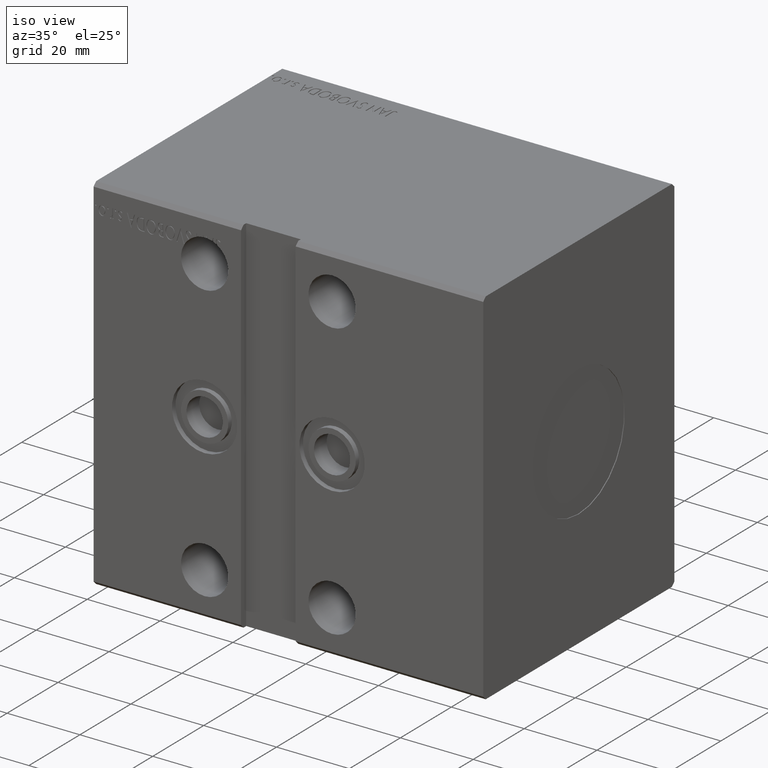
[diagram: clean part render]
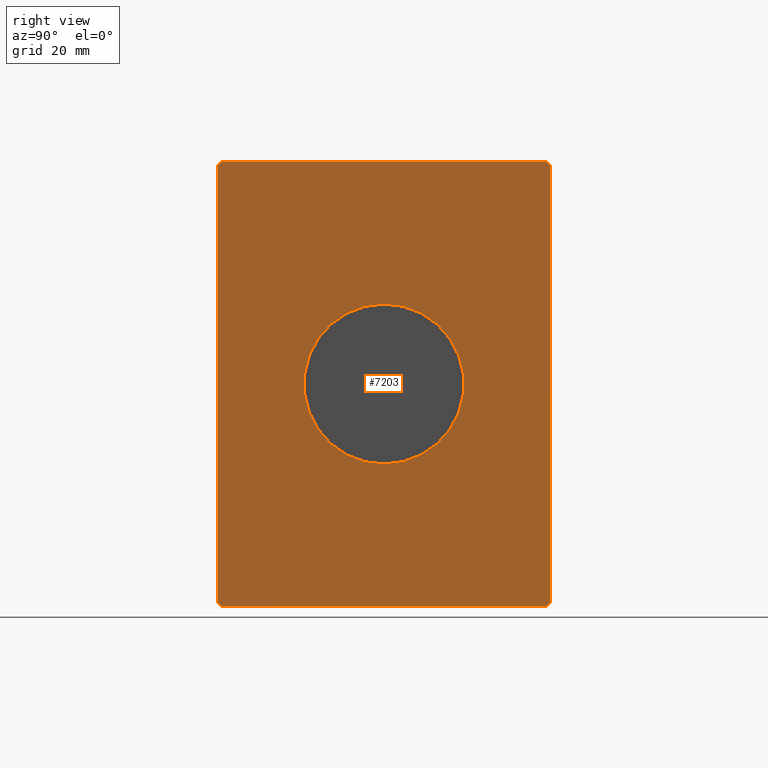
[diagram: tour spotlight — one face highlighted and labeled with its STEP entity id]
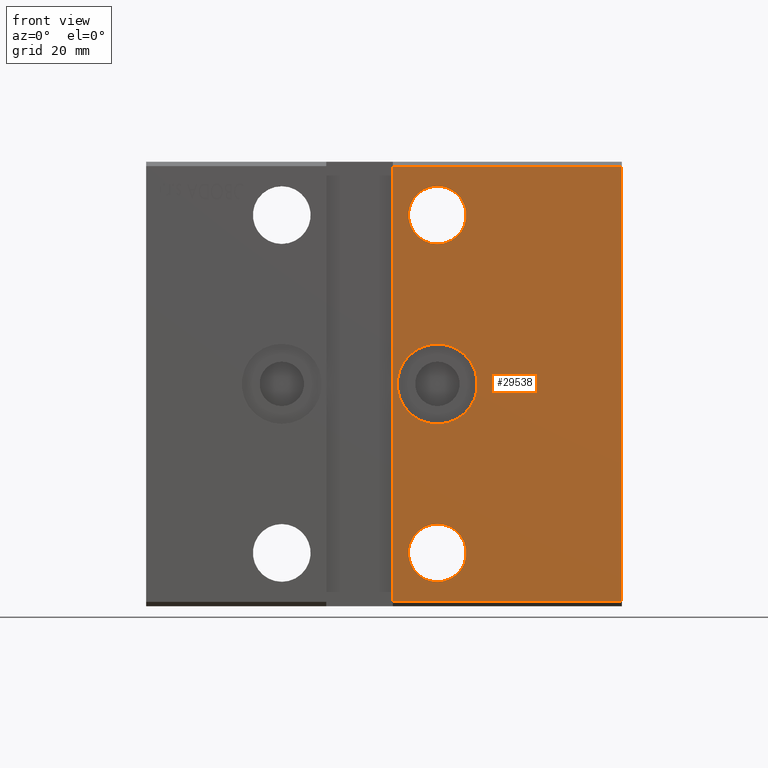
[diagram: tour spotlight — one face highlighted and labeled with its STEP entity id]
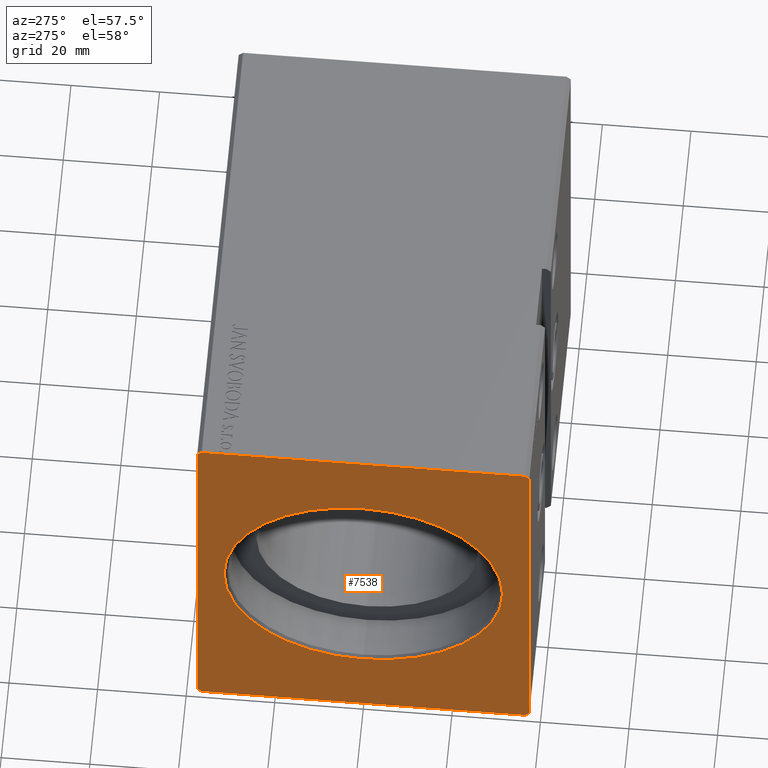
[diagram: tour spotlight — one face highlighted and labeled with its STEP entity id]
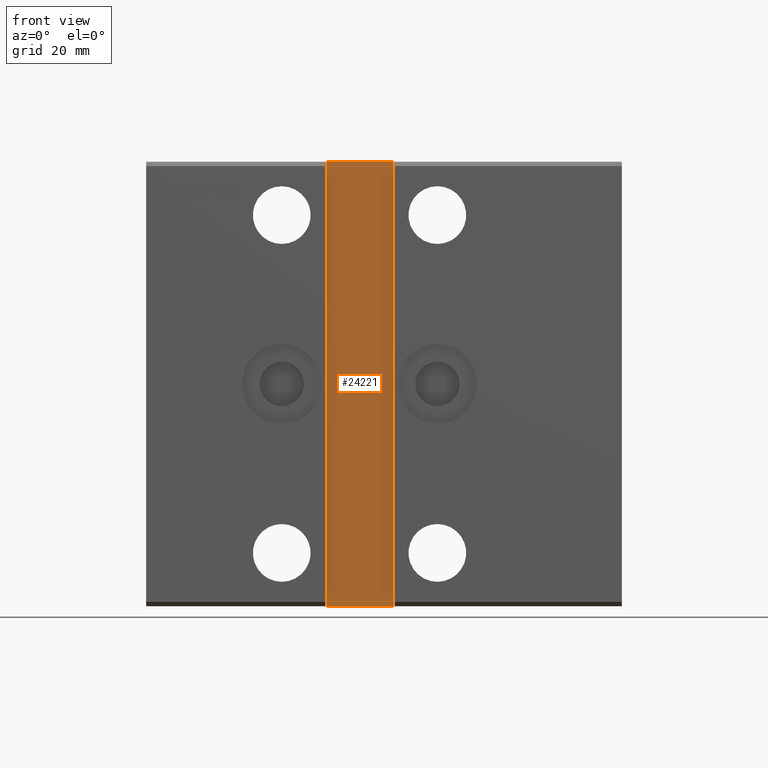
[diagram: tour spotlight — one face highlighted and labeled with its STEP entity id]
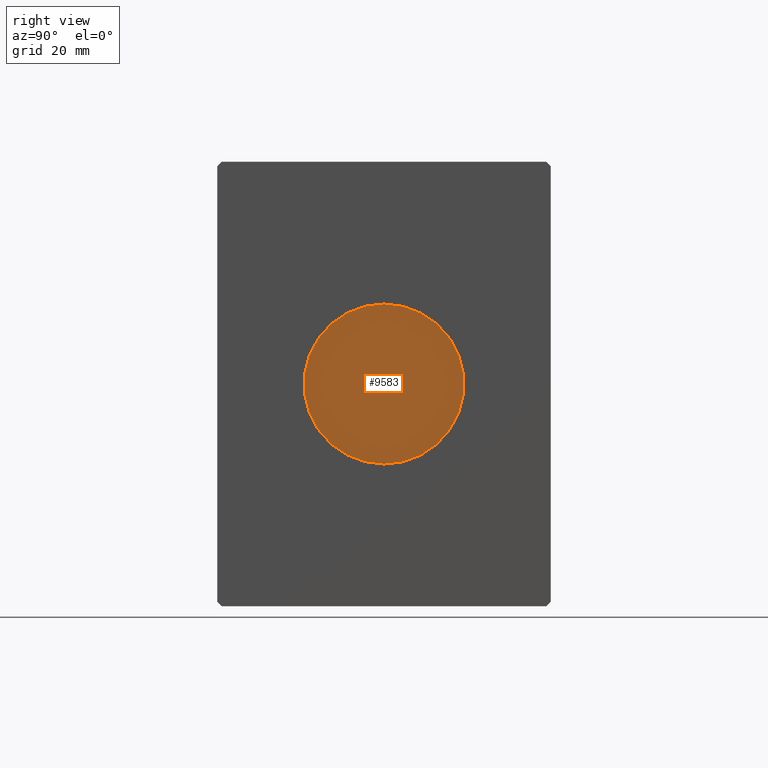
[diagram: tour spotlight — one face highlighted and labeled with its STEP entity id]
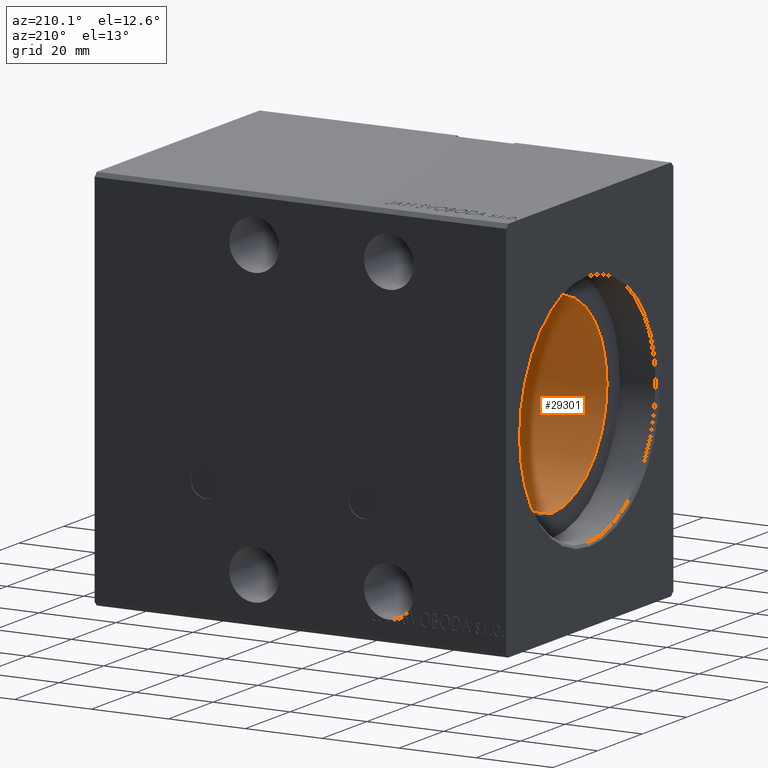
[diagram: tour spotlight — one face highlighted and labeled with its STEP entity id]
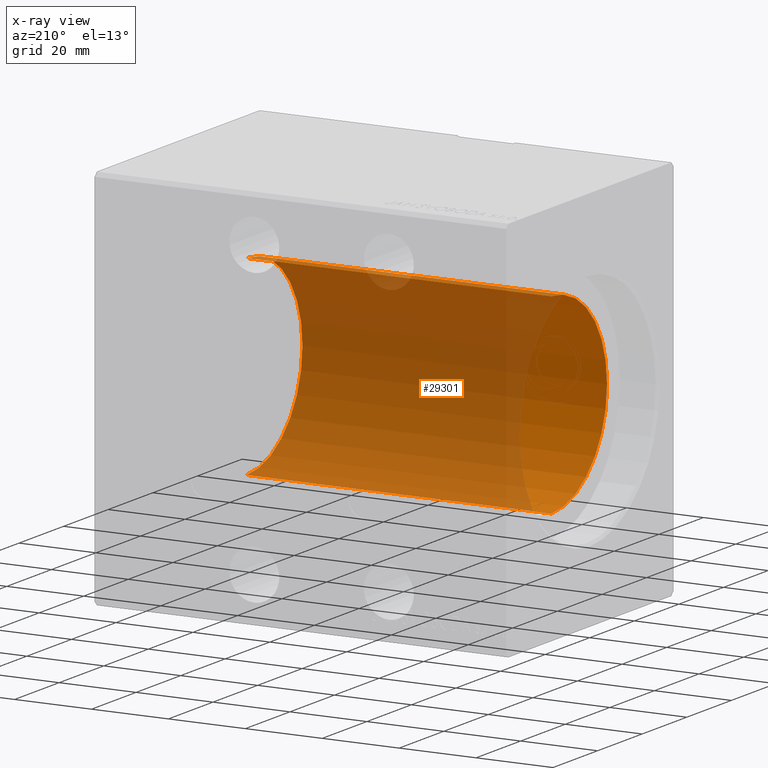
[diagram: x-ray of the same camera — body ghosted, this tour face saturated]
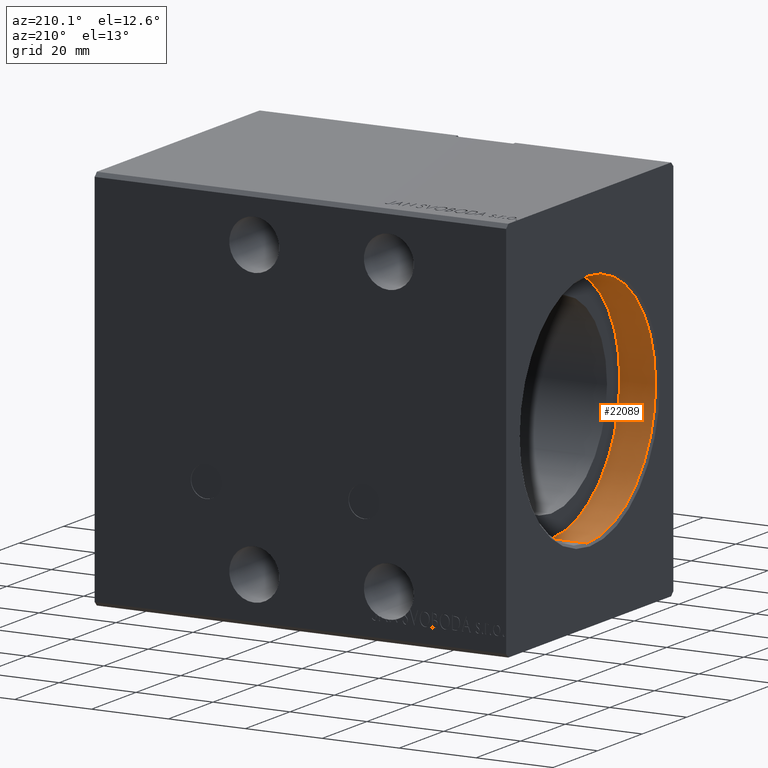
[diagram: tour spotlight — one face highlighted and labeled with its STEP entity id]
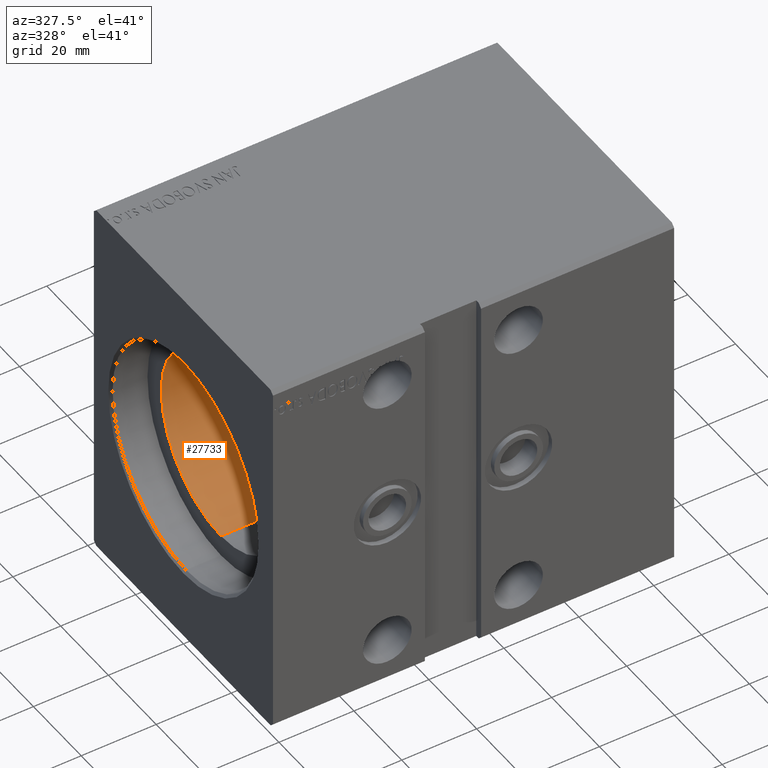
[diagram: tour spotlight — one face highlighted and labeled with its STEP entity id]
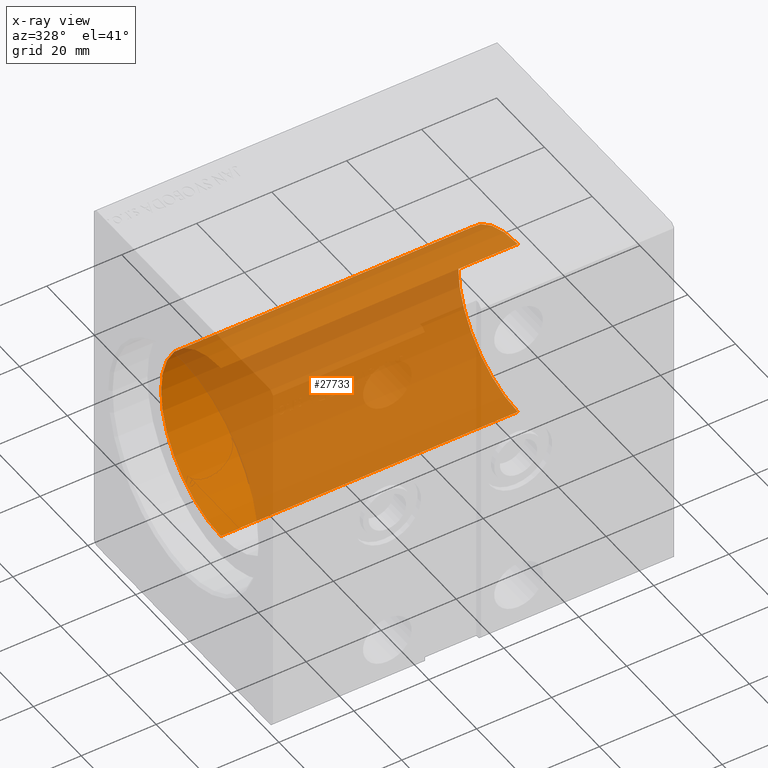
[diagram: x-ray of the same camera — body ghosted, this tour face saturated]
A machine part: a face-by-face anatomy tour. The part has 775 B-rep faces; the first image is the clean iso view, then the 8 largest visible faces are spotlighted one at a time (largest first), each with its STEP entity span.

Face 1 — right view, entity #7203. In plain terms, the highlighted planar face has unit normal (1, 0, 0).
Definition (entity closure, byte-faithful):
#321 = FACE_OUTER_BOUND ( 'NONE', #15539, .T. ) ;
#393 = LINE ( 'NONE', #25522, #36676 ) ;
#2260 = VECTOR ( 'NONE', #34795, 1000.000000000000000 ) ;
#2726 = CARTESIAN_POINT ( 'NONE',  ( 107.0000000000000000, 0.000000000000000000, 0.000000000000000000 ) ) ;
#2978 = CARTESIAN_POINT ( 'NONE',  ( 107.0000000000000000, 0.000000000000000000, 0.000000000000000000 ) ) ;
#3152 = VECTOR ( 'NONE', #36477, 1000.000000000000000 ) ;
#3345 = DIRECTION ( 'NONE',  ( 0.000000000000000000, -1.000000000000000000, -1.901066822988281457E-16 ) ) ;
#3460 = VERTEX_POINT ( 'NONE', #11670 ) ;
#4286 = CARTESIAN_POINT ( 'NONE',  ( 107.0000000000000000, -36.50000000000001421, 49.99999999999998579 ) ) ;
#4799 = ORIENTED_EDGE ( 'NONE', *, *, #36279, .T. ) ;
#4821 = EDGE_CURVE ( 'NONE', #10454, #16277, #28825, .T. ) ;
#6241 = EDGE_CURVE ( 'NONE', #22938, #30348, #25026, .T. ) ;
#6873 = CARTESIAN_POINT ( 'NONE',  ( 107.0000000000000000, -37.50000000000001421, 48.99999999999998579 ) ) ;
#7203 = ADVANCED_FACE ( 'NONE', ( #9390, #321 ), #12487, .T. ) ;
#7842 = ORIENTED_EDGE ( 'NONE', *, *, #37794, .T. ) ;
#8851 = CARTESIAN_POINT ( 'NONE',  ( 107.0000000000000000, 36.50000000000000711, -50.00000000000000000 ) ) ;
#8958 = DIRECTION ( 'NONE',  ( 0.000000000000000000, 0.000000000000000000, -1.000000000000000000 ) ) ;
#9001 = VERTEX_POINT ( 'NONE', #4286 ) ;
#9390 = FACE_BOUND ( 'NONE', #35087, .T. ) ;
#9726 = CARTESIAN_POINT ( 'NONE',  ( 107.0000000000000000, 36.50000000000000711, 50.00000000000000000 ) ) ;
#9789 = DIRECTION ( 'NONE',  ( 1.000000000000000000, 0.000000000000000000, 0.000000000000000000 ) ) ;
#10213 = VERTEX_POINT ( 'NONE', #36321 ) ;
#10454 = VERTEX_POINT ( 'NONE', #20416 ) ;
#10730 = LINE ( 'NONE', #32574, #19832 ) ;
#10986 = CARTESIAN_POINT ( 'NONE',  ( 107.0000000000000000, 37.50000000000000711, 49.00000000000000000 ) ) ;
#11670 = CARTESIAN_POINT ( 'NONE',  ( 107.0000000000000000, 36.50000000000000711, 50.00000000000000000 ) ) ;
#11792 = DIRECTION ( 'NONE',  ( 1.000000000000000000, 0.000000000000000000, 0.000000000000000000 ) ) ;
#12427 = LINE ( 'NONE', #9726, #28367 ) ;
#12487 = PLANE ( 'NONE',  #30516 ) ;
#13347 = DIRECTION ( 'NONE',  ( 0.000000000000000000, -0.7071067811865474617, 0.7071067811865474617 ) ) ;
#14206 = VERTEX_POINT ( 'NONE', #29939 ) ;
#14258 = CIRCLE ( 'NONE', #37290, 18.00000000000000000 ) ;
#15539 = EDGE_LOOP ( 'NONE', ( #31720, #4799, #19813, #33962, #40307, #19763, #7842, #18276 ) ) ;
#15962 = DIRECTION ( 'NONE',  ( 0.000000000000000000, 0.000000000000000000, -1.000000000000000000 ) ) ;
#16277 = VERTEX_POINT ( 'NONE', #8851 ) ;
#16440 = ORIENTED_EDGE ( 'NONE', *, *, #17022, .F. ) ;
#16569 = VECTOR ( 'NONE', #30640, 1000.000000000000114 ) ;
#17022 = EDGE_CURVE ( 'NONE', #18881, #10213, #14258, .T. ) ;
#17849 = LINE ( 'NONE', #40101, #16569 ) ;
#18242 = CIRCLE ( 'NONE', #27452, 18.00000000000000000 ) ;
#18276 = ORIENTED_EDGE ( 'NONE', *, *, #6241, .T. ) ;
#18881 = VERTEX_POINT ( 'NONE', #30221 ) ;
#19763 = ORIENTED_EDGE ( 'NONE', *, *, #4821, .T. ) ;
#19813 = ORIENTED_EDGE ( 'NONE', *, *, #35798, .T. ) ;
#19832 = VECTOR ( 'NONE', #23086, 1000.000000000000114 ) ;
#20362 = EDGE_CURVE ( 'NONE', #30348, #3460, #393, .T. ) ;
#20416 = CARTESIAN_POINT ( 'NONE',  ( 107.0000000000000000, -36.50000000000000711, -50.00000000000000000 ) ) ;
#21041 = VECTOR ( 'NONE', #26403, 1000.000000000000114 ) ;
#21752 = CARTESIAN_POINT ( 'NONE',  ( 107.0000000000000000, 0.000000000000000000, 0.000000000000000000 ) ) ;
#22228 = CARTESIAN_POINT ( 'NONE',  ( 107.0000000000000000, -36.50000000000000711, -50.00000000000000000 ) ) ;
#22298 = CARTESIAN_POINT ( 'NONE',  ( 107.0000000000000000, -37.50000000000001421, -49.00000000000000000 ) ) ;
#22938 = VERTEX_POINT ( 'NONE', #35337 ) ;
#23086 = DIRECTION ( 'NONE',  ( 0.000000000000000000, -0.7071067811865474617, -0.7071067811865474617 ) ) ;
#23315 = CARTESIAN_POINT ( 'NONE',  ( 107.0000000000000000, -37.50000000000001421, 48.99999999999998579 ) ) ;
#25026 = LINE ( 'NONE', #37998, #34417 ) ;
#25522 = CARTESIAN_POINT ( 'NONE',  ( 107.0000000000000000, 37.50000000000000711, 49.00000000000000000 ) ) ;
#25771 = EDGE_CURVE ( 'NONE', #38538, #14206, #29909, .T. ) ;
#26228 = ORIENTED_EDGE ( 'NONE', *, *, #33842, .F. ) ;
#26403 = DIRECTION ( 'NONE',  ( 0.000000000000000000, 0.7071067811865500152, -0.7071067811865451302 ) ) ;
#27452 = AXIS2_PLACEMENT_3D ( 'NONE', #2726, #11792, #36500 ) ;
#27542 = EDGE_CURVE ( 'NONE', #14206, #10454, #38568, .T. ) ;
#28367 = VECTOR ( 'NONE', #3345, 1000.000000000000000 ) ;
#28510 = DIRECTION ( 'NONE',  ( 1.000000000000000000, 0.000000000000000000, 0.000000000000000000 ) ) ;
#28825 = LINE ( 'NONE', #22228, #2260 ) ;
#29909 = LINE ( 'NONE', #23315, #3152 ) ;
#29939 = CARTESIAN_POINT ( 'NONE',  ( 107.0000000000000000, -37.50000000000001421, -49.00000000000000000 ) ) ;
#30221 = CARTESIAN_POINT ( 'NONE',  ( 107.0000000000000000, 2.204364238465235428E-15, 18.00000000000000000 ) ) ;
#30348 = VERTEX_POINT ( 'NONE', #10986 ) ;
#30516 = AXIS2_PLACEMENT_3D ( 'NONE', #21752, #9789, #15962 ) ;
#30640 = DIRECTION ( 'NONE',  ( 0.000000000000000000, 0.7071067811865474617, 0.7071067811865474617 ) ) ;
#31028 = DIRECTION ( 'NONE',  ( 0.000000000000000000, 0.000000000000000000, 1.000000000000000000 ) ) ;
#31720 = ORIENTED_EDGE ( 'NONE', *, *, #20362, .T. ) ;
#32574 = CARTESIAN_POINT ( 'NONE',  ( 107.0000000000000000, -36.50000000000001421, 49.99999999999998579 ) ) ;
#33842 = EDGE_CURVE ( 'NONE', #10213, #18881, #18242, .T. ) ;
#33962 = ORIENTED_EDGE ( 'NONE', *, *, #25771, .T. ) ;
#34417 = VECTOR ( 'NONE', #31028, 1000.000000000000000 ) ;
#34795 = DIRECTION ( 'NONE',  ( 0.000000000000000000, 1.000000000000000000, 0.000000000000000000 ) ) ;
#35087 = EDGE_LOOP ( 'NONE', ( #26228, #16440 ) ) ;
#35337 = CARTESIAN_POINT ( 'NONE',  ( 107.0000000000000000, 37.50000000000000711, -49.00000000000000000 ) ) ;
#35798 = EDGE_CURVE ( 'NONE', #9001, #38538, #10730, .T. ) ;
#36279 = EDGE_CURVE ( 'NONE', #3460, #9001, #12427, .T. ) ;
#36321 = CARTESIAN_POINT ( 'NONE',  ( 107.0000000000000000, 0.000000000000000000, -18.00000000000000000 ) ) ;
#36477 = DIRECTION ( 'NONE',  ( 0.000000000000000000, 0.000000000000000000, -1.000000000000000000 ) ) ;
#36500 = DIRECTION ( 'NONE',  ( 0.000000000000000000, 0.000000000000000000, -1.000000000000000000 ) ) ;
#36676 = VECTOR ( 'NONE', #13347, 1000.000000000000114 ) ;
#37290 = AXIS2_PLACEMENT_3D ( 'NONE', #2978, #28510, #8958 ) ;
#37794 = EDGE_CURVE ( 'NONE', #16277, #22938, #17849, .T. ) ;
#37998 = CARTESIAN_POINT ( 'NONE',  ( 107.0000000000000000, 37.50000000000000711, -49.00000000000000000 ) ) ;
#38538 = VERTEX_POINT ( 'NONE', #6873 ) ;
#38568 = LINE ( 'NONE', #22298, #21041 ) ;
#40101 = CARTESIAN_POINT ( 'NONE',  ( 107.0000000000000000, 36.50000000000000711, -50.00000000000000000 ) ) ;
#40307 = ORIENTED_EDGE ( 'NONE', *, *, #27542, .T. ) ;

Face 2 — front view, entity #29538. In plain terms, the highlighted planar face has unit normal (-0, 1, 0).
Definition (entity closure, byte-faithful):
#869 = DIRECTION ( 'NONE',  ( 0.000000000000000000, 0.000000000000000000, 1.000000000000000000 ) ) ;
#1007 = CARTESIAN_POINT ( 'NONE',  ( 55.50000000000000000, -37.50000000000001421, 48.99999999999998579 ) ) ;
#1075 = CARTESIAN_POINT ( 'NONE',  ( 65.50000000000001421, -37.50000000000001421, -2.652630106891489909E-15 ) ) ;
#1174 = DIRECTION ( 'NONE',  ( -0.000000000000000000, 1.000000000000000000, 0.000000000000000000 ) ) ;
#1286 = LINE ( 'NONE', #32604, #17619 ) ;
#1353 = DIRECTION ( 'NONE',  ( 0.000000000000000000, 0.000000000000000000, 1.000000000000000000 ) ) ;
#2122 = CARTESIAN_POINT ( 'NONE',  ( 65.50000000000001421, -37.50000000000001421, -38.00000000000000000 ) ) ;
#2312 = VERTEX_POINT ( 'NONE', #14788 ) ;
#2573 = CARTESIAN_POINT ( 'NONE',  ( 65.50000000000000000, -37.50000000000001421, 44.50000000000000000 ) ) ;
#2756 = ORIENTED_EDGE ( 'NONE', *, *, #25771, .F. ) ;
#3152 = VECTOR ( 'NONE', #36477, 1000.000000000000000 ) ;
#3622 = AXIS2_PLACEMENT_3D ( 'NONE', #1075, #13631, #869 ) ;
#3949 = EDGE_CURVE ( 'NONE', #7397, #6792, #27903, .T. ) ;
#4290 = EDGE_CURVE ( 'NONE', #30307, #14933, #18678, .T. ) ;
#4792 = ORIENTED_EDGE ( 'NONE', *, *, #4290, .T. ) ;
#4962 = DIRECTION ( 'NONE',  ( -1.000000000000000000, -0.000000000000000000, -0.000000000000000000 ) ) ;
#5501 = EDGE_CURVE ( 'NONE', #38538, #21083, #33196, .T. ) ;
#6183 = AXIS2_PLACEMENT_3D ( 'NONE', #2122, #8301, #14882 ) ;
#6792 = VERTEX_POINT ( 'NONE', #32350 ) ;
#6873 = CARTESIAN_POINT ( 'NONE',  ( 107.0000000000000000, -37.50000000000001421, 48.99999999999998579 ) ) ;
#7148 = FACE_BOUND ( 'NONE', #26274, .T. ) ;
#7397 = VERTEX_POINT ( 'NONE', #2573 ) ;
#7941 = DIRECTION ( 'NONE',  ( 0.000000000000000000, -1.000000000000000000, -0.000000000000000000 ) ) ;
#7970 = CARTESIAN_POINT ( 'NONE',  ( 65.50000000000001421, -37.50000000000001421, -44.50000000000000000 ) ) ;
#8093 = EDGE_CURVE ( 'NONE', #14933, #30307, #19318, .T. ) ;
#8301 = DIRECTION ( 'NONE',  ( -0.000000000000000000, 1.000000000000000000, 0.000000000000000000 ) ) ;
#10715 = EDGE_LOOP ( 'NONE', ( #40248, #18491 ) ) ;
#11032 = CARTESIAN_POINT ( 'NONE',  ( 65.50000000000000000, -37.50000000000001421, 38.00000000000000000 ) ) ;
#11201 = EDGE_CURVE ( 'NONE', #2312, #22477, #31909, .T. ) ;
#11810 = DIRECTION ( 'NONE',  ( -1.000000000000000000, -0.000000000000000000, -0.000000000000000000 ) ) ;
#11999 = DIRECTION ( 'NONE',  ( 0.000000000000000000, -1.000000000000000000, -0.000000000000000000 ) ) ;
#12061 = EDGE_CURVE ( 'NONE', #14206, #38285, #27468, .T. ) ;
#12119 = AXIS2_PLACEMENT_3D ( 'NONE', #38459, #1174, #26299 ) ;
#12298 = DIRECTION ( 'NONE',  ( -0.000000000000000000, 1.000000000000000000, 0.000000000000000000 ) ) ;
#13583 = CIRCLE ( 'NONE', #37937, 8.999999999999996447 ) ;
#13631 = DIRECTION ( 'NONE',  ( -0.000000000000000000, 1.000000000000000000, 5.507058653894625853E-17 ) ) ;
#14045 = DIRECTION ( 'NONE',  ( -2.081668171172169006E-16, -0.000000000000000000, 1.000000000000000000 ) ) ;
#14206 = VERTEX_POINT ( 'NONE', #29939 ) ;
#14680 = CARTESIAN_POINT ( 'NONE',  ( 107.0000000000000000, -37.50000000000001421, -49.00000000000000000 ) ) ;
#14788 = CARTESIAN_POINT ( 'NONE',  ( 65.50000000000001421, -37.50000000000001421, -9.000000000000000000 ) ) ;
#14882 = DIRECTION ( 'NONE',  ( 0.000000000000000000, 0.000000000000000000, 1.000000000000000000 ) ) ;
#14933 = VERTEX_POINT ( 'NONE', #40053 ) ;
#15325 = EDGE_LOOP ( 'NONE', ( #26637, #37861, #27715, #2756 ) ) ;
#16186 = ORIENTED_EDGE ( 'NONE', *, *, #3949, .F. ) ;
#16327 = CARTESIAN_POINT ( 'NONE',  ( 55.50000000000002132, -37.50000000000001421, -48.99999999999997158 ) ) ;
#16930 = EDGE_CURVE ( 'NONE', #22477, #2312, #13583, .T. ) ;
#17619 = VECTOR ( 'NONE', #14045, 1000.000000000000000 ) ;
#18491 = ORIENTED_EDGE ( 'NONE', *, *, #16930, .T. ) ;
#18678 = CIRCLE ( 'NONE', #6183, 6.499999999999999112 ) ;
#19213 = EDGE_CURVE ( 'NONE', #38285, #21083, #1286, .T. ) ;
#19258 = VECTOR ( 'NONE', #4962, 1000.000000000000000 ) ;
#19318 = CIRCLE ( 'NONE', #27897, 6.499999999999999112 ) ;
#19710 = FACE_OUTER_BOUND ( 'NONE', #15325, .T. ) ;
#19806 = CIRCLE ( 'NONE', #36249, 6.499999999999999112 ) ;
#20495 = DIRECTION ( 'NONE',  ( 0.000000000000000000, 0.000000000000000000, 1.000000000000000000 ) ) ;
#21083 = VERTEX_POINT ( 'NONE', #1007 ) ;
#22477 = VERTEX_POINT ( 'NONE', #37316 ) ;
#22774 = DIRECTION ( 'NONE',  ( -0.000000000000000000, 1.000000000000000000, 5.507058653894625853E-17 ) ) ;
#22800 = FACE_BOUND ( 'NONE', #10715, .T. ) ;
#23315 = CARTESIAN_POINT ( 'NONE',  ( 107.0000000000000000, -37.50000000000001421, 48.99999999999998579 ) ) ;
#25771 = EDGE_CURVE ( 'NONE', #38538, #14206, #29909, .T. ) ;
#26274 = EDGE_LOOP ( 'NONE', ( #4792, #27708 ) ) ;
#26299 = DIRECTION ( 'NONE',  ( 0.000000000000000000, -0.000000000000000000, 1.000000000000000000 ) ) ;
#26637 = ORIENTED_EDGE ( 'NONE', *, *, #5501, .T. ) ;
#27468 = LINE ( 'NONE', #14680, #35848 ) ;
#27708 = ORIENTED_EDGE ( 'NONE', *, *, #8093, .T. ) ;
#27715 = ORIENTED_EDGE ( 'NONE', *, *, #12061, .F. ) ;
#27819 = EDGE_LOOP ( 'NONE', ( #37125, #16186 ) ) ;
#27861 = CARTESIAN_POINT ( 'NONE',  ( 65.50000000000000000, -37.50000000000001421, 38.00000000000000000 ) ) ;
#27897 = AXIS2_PLACEMENT_3D ( 'NONE', #34731, #12298, #40722 ) ;
#27903 = CIRCLE ( 'NONE', #33167, 6.499999999999999112 ) ;
#28584 = PLANE ( 'NONE',  #12119 ) ;
#29538 = ADVANCED_FACE ( 'NONE', ( #22800, #7148, #19710, #32287 ), #28584, .F. ) ;
#29909 = LINE ( 'NONE', #23315, #3152 ) ;
#29939 = CARTESIAN_POINT ( 'NONE',  ( 107.0000000000000000, -37.50000000000001421, -49.00000000000000000 ) ) ;
#30307 = VERTEX_POINT ( 'NONE', #7970 ) ;
#31909 = CIRCLE ( 'NONE', #3622, 8.999999999999996447 ) ;
#32287 = FACE_BOUND ( 'NONE', #27819, .T. ) ;
#32350 = CARTESIAN_POINT ( 'NONE',  ( 65.50000000000000000, -37.50000000000001421, 31.50000000000000000 ) ) ;
#32604 = CARTESIAN_POINT ( 'NONE',  ( 55.50000000000000000, -37.50000000000001421, 49.99999999999998579 ) ) ;
#33167 = AXIS2_PLACEMENT_3D ( 'NONE', #11032, #7941, #20495 ) ;
#33196 = LINE ( 'NONE', #39570, #19258 ) ;
#34695 = EDGE_CURVE ( 'NONE', #6792, #7397, #19806, .T. ) ;
#34731 = CARTESIAN_POINT ( 'NONE',  ( 65.50000000000001421, -37.50000000000001421, -38.00000000000000000 ) ) ;
#35848 = VECTOR ( 'NONE', #11810, 1000.000000000000000 ) ;
#36249 = AXIS2_PLACEMENT_3D ( 'NONE', #27861, #11999, #37330 ) ;
#36477 = DIRECTION ( 'NONE',  ( 0.000000000000000000, 0.000000000000000000, -1.000000000000000000 ) ) ;
#37125 = ORIENTED_EDGE ( 'NONE', *, *, #34695, .F. ) ;
#37316 = CARTESIAN_POINT ( 'NONE',  ( 65.50000000000001421, -37.50000000000001421, 8.999999999999992895 ) ) ;
#37330 = DIRECTION ( 'NONE',  ( 0.000000000000000000, 0.000000000000000000, 1.000000000000000000 ) ) ;
#37861 = ORIENTED_EDGE ( 'NONE', *, *, #19213, .F. ) ;
#37937 = AXIS2_PLACEMENT_3D ( 'NONE', #38434, #22774, #1353 ) ;
#38285 = VERTEX_POINT ( 'NONE', #16327 ) ;
#38434 = CARTESIAN_POINT ( 'NONE',  ( 65.50000000000001421, -37.50000000000001421, -2.652630106891489909E-15 ) ) ;
#38459 = CARTESIAN_POINT ( 'NONE',  ( 107.0000000000000000, -37.50000000000001421, 48.99999999999998579 ) ) ;
#38538 = VERTEX_POINT ( 'NONE', #6873 ) ;
#39570 = CARTESIAN_POINT ( 'NONE',  ( 107.0000000000000000, -37.50000000000001421, 48.99999999999998579 ) ) ;
#40053 = CARTESIAN_POINT ( 'NONE',  ( 65.50000000000001421, -37.50000000000001421, -31.50000000000000000 ) ) ;
#40248 = ORIENTED_EDGE ( 'NONE', *, *, #11201, .T. ) ;
#40722 = DIRECTION ( 'NONE',  ( 0.000000000000000000, 0.000000000000000000, 1.000000000000000000 ) ) ;

Face 3 — auxiliary view, entity #7538. In plain terms, the highlighted planar face has unit normal (1, 0, 0).
Definition (entity closure, byte-faithful):
#4 = CARTESIAN_POINT ( 'NONE',  ( 0.000000000000000000, 3.851514183318427194E-15, -31.45000000000002061 ) ) ;
#1154 = VERTEX_POINT ( 'NONE', #12044 ) ;
#1459 = DIRECTION ( 'NONE',  ( 1.000000000000000000, 0.000000000000000000, 0.000000000000000000 ) ) ;
#1511 = EDGE_LOOP ( 'NONE', ( #33621, #33529, #3551, #9844, #2389, #9361, #7340, #29255 ) ) ;
#2015 = VECTOR ( 'NONE', #25874, 1000.000000000000000 ) ;
#2351 = VERTEX_POINT ( 'NONE', #36632 ) ;
#2389 = ORIENTED_EDGE ( 'NONE', *, *, #37171, .F. ) ;
#3276 = CARTESIAN_POINT ( 'NONE',  ( 0.000000000000000000, 37.50000000000000711, -49.00000000000000000 ) ) ;
#3551 = ORIENTED_EDGE ( 'NONE', *, *, #33090, .F. ) ;
#3888 = DIRECTION ( 'NONE',  ( 0.000000000000000000, -0.7071067811865474617, 0.7071067811865474617 ) ) ;
#3915 = VERTEX_POINT ( 'NONE', #17415 ) ;
#4015 = CARTESIAN_POINT ( 'NONE',  ( 0.000000000000000000, -37.50000000000001421, 48.99999999999998579 ) ) ;
#4363 = LINE ( 'NONE', #7241, #21589 ) ;
#4597 = EDGE_CURVE ( 'NONE', #10680, #22570, #34391, .T. ) ;
#5500 = CARTESIAN_POINT ( 'NONE',  ( 0.000000000000000000, 37.50000000000000711, 49.00000000000000000 ) ) ;
#5866 = EDGE_CURVE ( 'NONE', #22570, #10680, #23894, .T. ) ;
#7241 = CARTESIAN_POINT ( 'NONE',  ( 0.000000000000000000, 37.50000000000000711, -49.00000000000000000 ) ) ;
#7340 = ORIENTED_EDGE ( 'NONE', *, *, #13333, .F. ) ;
#7438 = EDGE_CURVE ( 'NONE', #39703, #3915, #33475, .T. ) ;
#7538 = ADVANCED_FACE ( 'NONE', ( #10150, #19418 ), #22712, .F. ) ;
#7742 = VECTOR ( 'NONE', #3888, 1000.000000000000114 ) ;
#7859 = VERTEX_POINT ( 'NONE', #5500 ) ;
#8244 = VECTOR ( 'NONE', #12451, 1000.000000000000114 ) ;
#8868 = VERTEX_POINT ( 'NONE', #3276 ) ;
#8919 = VECTOR ( 'NONE', #9987, 1000.000000000000000 ) ;
#9361 = ORIENTED_EDGE ( 'NONE', *, *, #12405, .F. ) ;
#9844 = ORIENTED_EDGE ( 'NONE', *, *, #28522, .F. ) ;
#9987 = DIRECTION ( 'NONE',  ( 0.000000000000000000, 0.000000000000000000, -1.000000000000000000 ) ) ;
#10098 = CARTESIAN_POINT ( 'NONE',  ( 0.000000000000000000, -37.50000000000001421, 48.99999999999998579 ) ) ;
#10150 = FACE_BOUND ( 'NONE', #27435, .T. ) ;
#10224 = LINE ( 'NONE', #34749, #2015 ) ;
#10379 = ORIENTED_EDGE ( 'NONE', *, *, #4597, .T. ) ;
#10680 = VERTEX_POINT ( 'NONE', #4 ) ;
#12018 = CARTESIAN_POINT ( 'NONE',  ( 0.000000000000000000, 36.50000000000000711, -50.00000000000000000 ) ) ;
#12044 = CARTESIAN_POINT ( 'NONE',  ( 0.000000000000000000, -36.50000000000000711, -50.00000000000000000 ) ) ;
#12069 = VECTOR ( 'NONE', #23787, 1000.000000000000000 ) ;
#12076 = LINE ( 'NONE', #18452, #33021 ) ;
#12405 = EDGE_CURVE ( 'NONE', #22619, #2351, #26257, .T. ) ;
#12451 = DIRECTION ( 'NONE',  ( 0.000000000000000000, -0.7071067811865474617, -0.7071067811865474617 ) ) ;
#13333 = EDGE_CURVE ( 'NONE', #3915, #22619, #38172, .T. ) ;
#13470 = CARTESIAN_POINT ( 'NONE',  ( 0.000000000000000000, 36.50000000000000711, -50.00000000000000000 ) ) ;
#13843 = CARTESIAN_POINT ( 'NONE',  ( 0.000000000000000000, 0.000000000000000000, 0.000000000000000000 ) ) ;
#14642 = AXIS2_PLACEMENT_3D ( 'NONE', #17319, #1459, #22889 ) ;
#14916 = VECTOR ( 'NONE', #22744, 1000.000000000000114 ) ;
#15001 = DIRECTION ( 'NONE',  ( 1.000000000000000000, 0.000000000000000000, 0.000000000000000000 ) ) ;
#16923 = DIRECTION ( 'NONE',  ( 0.000000000000000000, 0.000000000000000000, 1.000000000000000000 ) ) ;
#17319 = CARTESIAN_POINT ( 'NONE',  ( 0.000000000000000000, 0.000000000000000000, 0.000000000000000000 ) ) ;
#17415 = CARTESIAN_POINT ( 'NONE',  ( 0.000000000000000000, -36.50000000000001421, 49.99999999999998579 ) ) ;
#18008 = AXIS2_PLACEMENT_3D ( 'NONE', #13843, #31994, #38781 ) ;
#18452 = CARTESIAN_POINT ( 'NONE',  ( 0.000000000000000000, -37.50000000000001421, -49.00000000000000000 ) ) ;
#19418 = FACE_OUTER_BOUND ( 'NONE', #1511, .T. ) ;
#19539 = CARTESIAN_POINT ( 'NONE',  ( 0.000000000000000000, 37.50000000000000711, 49.00000000000000000 ) ) ;
#20318 = EDGE_CURVE ( 'NONE', #7859, #39703, #32319, .T. ) ;
#21589 = VECTOR ( 'NONE', #16923, 1000.000000000000000 ) ;
#21855 = EDGE_CURVE ( 'NONE', #8868, #7859, #4363, .T. ) ;
#22570 = VERTEX_POINT ( 'NONE', #22870 ) ;
#22619 = VERTEX_POINT ( 'NONE', #10098 ) ;
#22712 = PLANE ( 'NONE',  #18008 ) ;
#22744 = DIRECTION ( 'NONE',  ( 0.000000000000000000, 0.7071067811865474617, 0.7071067811865474617 ) ) ;
#22870 = CARTESIAN_POINT ( 'NONE',  ( 0.000000000000000000, 0.000000000000000000, 31.45000000000002061 ) ) ;
#22889 = DIRECTION ( 'NONE',  ( 0.000000000000000000, 0.000000000000000000, -1.000000000000000000 ) ) ;
#23787 = DIRECTION ( 'NONE',  ( 0.000000000000000000, -1.000000000000000000, -1.901066822988281457E-16 ) ) ;
#23894 = CIRCLE ( 'NONE', #30491, 31.45000000000002061 ) ;
#25874 = DIRECTION ( 'NONE',  ( 0.000000000000000000, 1.000000000000000000, 0.000000000000000000 ) ) ;
#26257 = LINE ( 'NONE', #4015, #8919 ) ;
#27435 = EDGE_LOOP ( 'NONE', ( #34640, #10379 ) ) ;
#27781 = DIRECTION ( 'NONE',  ( 0.000000000000000000, 0.000000000000000000, -1.000000000000000000 ) ) ;
#28522 = EDGE_CURVE ( 'NONE', #1154, #36155, #10224, .T. ) ;
#28529 = LINE ( 'NONE', #13470, #14916 ) ;
#29255 = ORIENTED_EDGE ( 'NONE', *, *, #7438, .F. ) ;
#29871 = CARTESIAN_POINT ( 'NONE',  ( 0.000000000000000000, 36.50000000000000711, 50.00000000000000000 ) ) ;
#30381 = CARTESIAN_POINT ( 'NONE',  ( 0.000000000000000000, 36.50000000000000711, 50.00000000000000000 ) ) ;
#30491 = AXIS2_PLACEMENT_3D ( 'NONE', #40143, #15001, #27781 ) ;
#31994 = DIRECTION ( 'NONE',  ( 1.000000000000000000, 0.000000000000000000, 0.000000000000000000 ) ) ;
#32319 = LINE ( 'NONE', #19539, #7742 ) ;
#33021 = VECTOR ( 'NONE', #34508, 1000.000000000000114 ) ;
#33090 = EDGE_CURVE ( 'NONE', #36155, #8868, #28529, .T. ) ;
#33475 = LINE ( 'NONE', #30381, #12069 ) ;
#33529 = ORIENTED_EDGE ( 'NONE', *, *, #21855, .F. ) ;
#33621 = ORIENTED_EDGE ( 'NONE', *, *, #20318, .F. ) ;
#34391 = CIRCLE ( 'NONE', #14642, 31.45000000000002061 ) ;
#34508 = DIRECTION ( 'NONE',  ( 0.000000000000000000, 0.7071067811865500152, -0.7071067811865451302 ) ) ;
#34640 = ORIENTED_EDGE ( 'NONE', *, *, #5866, .T. ) ;
#34749 = CARTESIAN_POINT ( 'NONE',  ( 0.000000000000000000, -36.50000000000000711, -50.00000000000000000 ) ) ;
#36155 = VERTEX_POINT ( 'NONE', #12018 ) ;
#36632 = CARTESIAN_POINT ( 'NONE',  ( 0.000000000000000000, -37.50000000000001421, -49.00000000000000000 ) ) ;
#37171 = EDGE_CURVE ( 'NONE', #2351, #1154, #12076, .T. ) ;
#38172 = LINE ( 'NONE', #40675, #8244 ) ;
#38781 = DIRECTION ( 'NONE',  ( 0.000000000000000000, 0.000000000000000000, -1.000000000000000000 ) ) ;
#39703 = VERTEX_POINT ( 'NONE', #29871 ) ;
#40143 = CARTESIAN_POINT ( 'NONE',  ( 0.000000000000000000, 0.000000000000000000, 0.000000000000000000 ) ) ;
#40675 = CARTESIAN_POINT ( 'NONE',  ( 0.000000000000000000, -36.50000000000001421, 49.99999999999998579 ) ) ;

Face 4 — front view, entity #24221. In plain terms, the highlighted planar face has unit normal (0, -1, 0).
Definition (entity closure, byte-faithful):
#2226 = ORIENTED_EDGE ( 'NONE', *, *, #17401, .T. ) ;
#3938 = DIRECTION ( 'NONE',  ( 0.000000000000000000, -0.000000000000000000, -1.000000000000000000 ) ) ;
#4027 = CARTESIAN_POINT ( 'NONE',  ( 40.50000000000000000, -35.50000000000001421, 49.99999999999998579 ) ) ;
#11932 = LINE ( 'NONE', #33570, #18049 ) ;
#13446 = LINE ( 'NONE', #20037, #15497 ) ;
#14221 = EDGE_CURVE ( 'NONE', #36411, #26478, #13446, .T. ) ;
#14545 = CARTESIAN_POINT ( 'NONE',  ( 55.50000000000002132, -35.50000000000001421, -50.00000000000000000 ) ) ;
#15497 = VECTOR ( 'NONE', #22720, 1000.000000000000000 ) ;
#16086 = PLANE ( 'NONE',  #40624 ) ;
#16460 = LINE ( 'NONE', #34605, #20174 ) ;
#16910 = VECTOR ( 'NONE', #27091, 1000.000000000000000 ) ;
#17401 = EDGE_CURVE ( 'NONE', #30331, #36411, #16460, .T. ) ;
#18049 = VECTOR ( 'NONE', #24487, 1000.000000000000000 ) ;
#19328 = ORIENTED_EDGE ( 'NONE', *, *, #30719, .T. ) ;
#20037 = CARTESIAN_POINT ( 'NONE',  ( 40.50000000000000000, -35.50000000000001421, 49.99999999999998579 ) ) ;
#20174 = VECTOR ( 'NONE', #35002, 1000.000000000000000 ) ;
#22720 = DIRECTION ( 'NONE',  ( -1.000000000000000000, -0.000000000000000000, -0.000000000000000000 ) ) ;
#22899 = CARTESIAN_POINT ( 'NONE',  ( 55.50000000000000000, -35.50000000000001421, 49.99999999999998579 ) ) ;
#24221 = ADVANCED_FACE ( 'NONE', ( #25159 ), #16086, .T. ) ;
#24487 = DIRECTION ( 'NONE',  ( 1.000000000000000000, 0.000000000000000000, 0.000000000000000000 ) ) ;
#25159 = FACE_OUTER_BOUND ( 'NONE', #36365, .T. ) ;
#25568 = CARTESIAN_POINT ( 'NONE',  ( 0.000000000000000000, -35.50000000000001421, 1.101411730778925047E-16 ) ) ;
#25839 = CARTESIAN_POINT ( 'NONE',  ( 40.50000000000000711, -35.50000000000001421, -50.00000000000000000 ) ) ;
#26478 = VERTEX_POINT ( 'NONE', #27479 ) ;
#27091 = DIRECTION ( 'NONE',  ( 6.938893903907229610E-17, 0.000000000000000000, -1.000000000000000000 ) ) ;
#27479 = CARTESIAN_POINT ( 'NONE',  ( 40.50000000000000000, -35.50000000000001421, 49.99999999999998579 ) ) ;
#30331 = VERTEX_POINT ( 'NONE', #14545 ) ;
#30719 = EDGE_CURVE ( 'NONE', #31187, #30331, #11932, .T. ) ;
#31187 = VERTEX_POINT ( 'NONE', #25839 ) ;
#32259 = LINE ( 'NONE', #4027, #16910 ) ;
#33570 = CARTESIAN_POINT ( 'NONE',  ( 40.50000000000000711, -35.50000000000001421, -50.00000000000000000 ) ) ;
#34293 = EDGE_CURVE ( 'NONE', #26478, #31187, #32259, .T. ) ;
#34605 = CARTESIAN_POINT ( 'NONE',  ( 55.50000000000000000, -35.50000000000001421, 49.99999999999998579 ) ) ;
#35002 = DIRECTION ( 'NONE',  ( -2.081668171172169006E-16, -0.000000000000000000, 1.000000000000000000 ) ) ;
#36365 = EDGE_LOOP ( 'NONE', ( #2226, #39392, #39002, #19328 ) ) ;
#36411 = VERTEX_POINT ( 'NONE', #22899 ) ;
#37726 = DIRECTION ( 'NONE',  ( 0.000000000000000000, -1.000000000000000000, 0.000000000000000000 ) ) ;
#39002 = ORIENTED_EDGE ( 'NONE', *, *, #34293, .T. ) ;
#39392 = ORIENTED_EDGE ( 'NONE', *, *, #14221, .T. ) ;
#40624 = AXIS2_PLACEMENT_3D ( 'NONE', #25568, #37726, #3938 ) ;

Face 5 — right view, entity #9583. In plain terms, the highlighted planar face has unit normal (1, 0, 0).
Definition (entity closure, byte-faithful):
#1000 = CIRCLE ( 'NONE', #22697, 18.00000000000000000 ) ;
#1626 = PLANE ( 'NONE',  #18070 ) ;
#2238 = CARTESIAN_POINT ( 'NONE',  ( 106.7999999999999972, 0.000000000000000000, 0.000000000000000000 ) ) ;
#4916 = DIRECTION ( 'NONE',  ( 1.000000000000000000, 0.000000000000000000, 0.000000000000000000 ) ) ;
#9583 = ADVANCED_FACE ( 'NONE', ( #30466 ), #1626, .T. ) ;
#9994 = CARTESIAN_POINT ( 'NONE',  ( 106.7999999999999972, 0.000000000000000000, 0.000000000000000000 ) ) ;
#11408 = ORIENTED_EDGE ( 'NONE', *, *, #13047, .T. ) ;
#11609 = DIRECTION ( 'NONE',  ( 0.000000000000000000, 0.000000000000000000, -1.000000000000000000 ) ) ;
#13047 = EDGE_CURVE ( 'NONE', #38063, #40028, #1000, .T. ) ;
#15771 = DIRECTION ( 'NONE',  ( 0.000000000000000000, 0.000000000000000000, -1.000000000000000000 ) ) ;
#17127 = CIRCLE ( 'NONE', #37530, 18.00000000000000000 ) ;
#17891 = DIRECTION ( 'NONE',  ( 0.000000000000000000, 0.000000000000000000, -1.000000000000000000 ) ) ;
#18070 = AXIS2_PLACEMENT_3D ( 'NONE', #2238, #4916, #17891 ) ;
#18195 = CARTESIAN_POINT ( 'NONE',  ( 106.7999999999999972, 0.000000000000000000, 0.000000000000000000 ) ) ;
#21758 = DIRECTION ( 'NONE',  ( 1.000000000000000000, 0.000000000000000000, 0.000000000000000000 ) ) ;
#22143 = CARTESIAN_POINT ( 'NONE',  ( 106.7999999999999972, 0.000000000000000000, -18.00000000000000000 ) ) ;
#22697 = AXIS2_PLACEMENT_3D ( 'NONE', #9994, #21758, #15771 ) ;
#28707 = EDGE_CURVE ( 'NONE', #40028, #38063, #17127, .T. ) ;
#30466 = FACE_OUTER_BOUND ( 'NONE', #38545, .T. ) ;
#30573 = DIRECTION ( 'NONE',  ( 1.000000000000000000, 0.000000000000000000, 0.000000000000000000 ) ) ;
#33056 = CARTESIAN_POINT ( 'NONE',  ( 106.7999999999999972, 2.204364238465235428E-15, 18.00000000000000000 ) ) ;
#35346 = ORIENTED_EDGE ( 'NONE', *, *, #28707, .T. ) ;
#37530 = AXIS2_PLACEMENT_3D ( 'NONE', #18195, #30573, #11609 ) ;
#38063 = VERTEX_POINT ( 'NONE', #33056 ) ;
#38545 = EDGE_LOOP ( 'NONE', ( #35346, #11408 ) ) ;
#40028 = VERTEX_POINT ( 'NONE', #22143 ) ;

Face 6 — auxiliary view, entity #29301. An x-ray twin of the same camera follows (body ghosted, this face saturated) — the face is partly hidden behind the body. In plain terms, the highlighted cylindrical surface (partial cylindrical patch) has radius 25 mm, axis along (-1, -0, -0).
Definition (entity closure, byte-faithful):
#980 = EDGE_CURVE ( 'NONE', #20971, #23351, #9993, .T. ) ;
#3701 = CYLINDRICAL_SURFACE ( 'NONE', #29222, 25.00000000000000000 ) ;
#4110 = FACE_OUTER_BOUND ( 'NONE', #19812, .T. ) ;
#7398 = DIRECTION ( 'NONE',  ( 0.000000000000000000, 0.000000000000000000, 1.000000000000000000 ) ) ;
#7657 = CARTESIAN_POINT ( 'NONE',  ( 89.20000000000000284, 0.000000000000000000, 0.000000000000000000 ) ) ;
#7766 = CIRCLE ( 'NONE', #22224, 25.00000000000000000 ) ;
#8274 = ORIENTED_EDGE ( 'NONE', *, *, #25190, .T. ) ;
#9794 = DIRECTION ( 'NONE',  ( -1.000000000000000000, -0.000000000000000000, -0.000000000000000000 ) ) ;
#9993 = LINE ( 'NONE', #25653, #29808 ) ;
#10374 = ORIENTED_EDGE ( 'NONE', *, *, #980, .F. ) ;
#12120 = CARTESIAN_POINT ( 'NONE',  ( 9.999999999999994671, 0.000000000000000000, 0.000000000000000000 ) ) ;
#12263 = CARTESIAN_POINT ( 'NONE',  ( 89.20000000000000284, 3.061616997868383043E-15, -25.00000000000000000 ) ) ;
#14339 = AXIS2_PLACEMENT_3D ( 'NONE', #7657, #23097, #20212 ) ;
#16102 = CARTESIAN_POINT ( 'NONE',  ( 9.999999999999994671, 3.061616997868383043E-15, -25.00000000000000000 ) ) ;
#16456 = CARTESIAN_POINT ( 'NONE',  ( 89.20000000000000284, 3.061616997868383043E-15, -25.00000000000000000 ) ) ;
#19812 = EDGE_LOOP ( 'NONE', ( #29168, #8274, #22831, #10374 ) ) ;
#20212 = DIRECTION ( 'NONE',  ( 0.000000000000000000, 0.000000000000000000, 1.000000000000000000 ) ) ;
#20971 = VERTEX_POINT ( 'NONE', #30308 ) ;
#21268 = EDGE_CURVE ( 'NONE', #36280, #23351, #7766, .T. ) ;
#21725 = LINE ( 'NONE', #12263, #26131 ) ;
#22224 = AXIS2_PLACEMENT_3D ( 'NONE', #12120, #40338, #24678 ) ;
#22831 = ORIENTED_EDGE ( 'NONE', *, *, #21268, .T. ) ;
#23097 = DIRECTION ( 'NONE',  ( -1.000000000000000000, 0.000000000000000000, 0.000000000000000000 ) ) ;
#23268 = DIRECTION ( 'NONE',  ( -1.000000000000000000, -0.000000000000000000, -0.000000000000000000 ) ) ;
#23351 = VERTEX_POINT ( 'NONE', #33637 ) ;
#24678 = DIRECTION ( 'NONE',  ( 0.000000000000000000, 0.000000000000000000, 1.000000000000000000 ) ) ;
#25190 = EDGE_CURVE ( 'NONE', #28287, #36280, #21725, .T. ) ;
#25653 = CARTESIAN_POINT ( 'NONE',  ( 89.20000000000000284, 0.000000000000000000, 25.00000000000000000 ) ) ;
#25799 = EDGE_CURVE ( 'NONE', #28287, #20971, #31446, .T. ) ;
#26131 = VECTOR ( 'NONE', #31218, 1000.000000000000000 ) ;
#28287 = VERTEX_POINT ( 'NONE', #16456 ) ;
#29168 = ORIENTED_EDGE ( 'NONE', *, *, #25799, .F. ) ;
#29222 = AXIS2_PLACEMENT_3D ( 'NONE', #32138, #23268, #7398 ) ;
#29301 = ADVANCED_FACE ( 'NONE', ( #4110 ), #3701, .F. ) ;
#29808 = VECTOR ( 'NONE', #9794, 1000.000000000000000 ) ;
#30308 = CARTESIAN_POINT ( 'NONE',  ( 89.20000000000000284, 0.000000000000000000, 25.00000000000000000 ) ) ;
#31218 = DIRECTION ( 'NONE',  ( -1.000000000000000000, -0.000000000000000000, -0.000000000000000000 ) ) ;
#31446 = CIRCLE ( 'NONE', #14339, 25.00000000000000000 ) ;
#32138 = CARTESIAN_POINT ( 'NONE',  ( 89.20000000000000284, 0.000000000000000000, 0.000000000000000000 ) ) ;
#33637 = CARTESIAN_POINT ( 'NONE',  ( 9.999999999999994671, 0.000000000000000000, 25.00000000000000000 ) ) ;
#36280 = VERTEX_POINT ( 'NONE', #16102 ) ;
#40338 = DIRECTION ( 'NONE',  ( -1.000000000000000000, 0.000000000000000000, 0.000000000000000000 ) ) ;

Face 7 — auxiliary view, entity #22089. In plain terms, the highlighted cylindrical surface (partial cylindrical patch) has radius 30.75 mm, axis along (-1, -0, -0).
Definition (entity closure, byte-faithful):
#170 = ORIENTED_EDGE ( 'NONE', *, *, #25109, .F. ) ;
#2186 = CYLINDRICAL_SURFACE ( 'NONE', #30822, 30.75000000000000355 ) ;
#2487 = DIRECTION ( 'NONE',  ( -1.000000000000000000, -0.000000000000000000, -0.000000000000000000 ) ) ;
#7353 = LINE ( 'NONE', #39078, #13417 ) ;
#8557 = DIRECTION ( 'NONE',  ( 0.000000000000000000, 0.000000000000000000, 1.000000000000000000 ) ) ;
#9261 = LINE ( 'NONE', #15235, #16285 ) ;
#9581 = CIRCLE ( 'NONE', #38528, 30.75000000000000355 ) ;
#10405 = DIRECTION ( 'NONE',  ( 0.000000000000000000, 0.000000000000000000, -1.000000000000000000 ) ) ;
#11853 = ORIENTED_EDGE ( 'NONE', *, *, #14626, .T. ) ;
#12984 = AXIS2_PLACEMENT_3D ( 'NONE', #36571, #17829, #8557 ) ;
#13417 = VECTOR ( 'NONE', #35777, 1000.000000000000000 ) ;
#14626 = EDGE_CURVE ( 'NONE', #33819, #36597, #9581, .T. ) ;
#15235 = CARTESIAN_POINT ( 'NONE',  ( 10.00000000000000000, 0.000000000000000000, 30.75000000000000355 ) ) ;
#15448 = VERTEX_POINT ( 'NONE', #29263 ) ;
#15458 = CARTESIAN_POINT ( 'NONE',  ( 0.7000000000000234923, 0.000000000000000000, 30.75000000000000355 ) ) ;
#16285 = VECTOR ( 'NONE', #2487, 1000.000000000000000 ) ;
#17829 = DIRECTION ( 'NONE',  ( -1.000000000000000000, 0.000000000000000000, 0.000000000000000000 ) ) ;
#22089 = ADVANCED_FACE ( 'NONE', ( #24837 ), #2186, .F. ) ;
#23944 = CARTESIAN_POINT ( 'NONE',  ( 0.7000000000000234923, 3.765788907378111328E-15, -30.75000000000000355 ) ) ;
#24174 = CIRCLE ( 'NONE', #12984, 30.75000000000000355 ) ;
#24426 = EDGE_CURVE ( 'NONE', #37336, #36597, #9261, .T. ) ;
#24837 = FACE_OUTER_BOUND ( 'NONE', #32456, .T. ) ;
#24934 = ORIENTED_EDGE ( 'NONE', *, *, #24426, .F. ) ;
#25109 = EDGE_CURVE ( 'NONE', #15448, #37336, #24174, .T. ) ;
#26048 = DIRECTION ( 'NONE',  ( -1.000000000000000000, 0.000000000000000000, 0.000000000000000000 ) ) ;
#27934 = CARTESIAN_POINT ( 'NONE',  ( 10.00000000000000000, 0.000000000000000000, 0.000000000000000000 ) ) ;
#29263 = CARTESIAN_POINT ( 'NONE',  ( 10.00000000000000000, 3.765788907378111328E-15, -30.75000000000000355 ) ) ;
#30254 = EDGE_CURVE ( 'NONE', #15448, #33819, #7353, .T. ) ;
#30629 = DIRECTION ( 'NONE',  ( 0.000000000000000000, 0.000000000000000000, 1.000000000000000000 ) ) ;
#30822 = AXIS2_PLACEMENT_3D ( 'NONE', #27934, #31031, #30629 ) ;
#31031 = DIRECTION ( 'NONE',  ( -1.000000000000000000, -0.000000000000000000, -0.000000000000000000 ) ) ;
#32456 = EDGE_LOOP ( 'NONE', ( #170, #39516, #11853, #24934 ) ) ;
#33819 = VERTEX_POINT ( 'NONE', #23944 ) ;
#35777 = DIRECTION ( 'NONE',  ( -1.000000000000000000, -0.000000000000000000, -0.000000000000000000 ) ) ;
#36571 = CARTESIAN_POINT ( 'NONE',  ( 10.00000000000000000, 0.000000000000000000, 0.000000000000000000 ) ) ;
#36597 = VERTEX_POINT ( 'NONE', #15458 ) ;
#37306 = CARTESIAN_POINT ( 'NONE',  ( 10.00000000000000000, 0.000000000000000000, 30.75000000000000355 ) ) ;
#37336 = VERTEX_POINT ( 'NONE', #37306 ) ;
#37805 = CARTESIAN_POINT ( 'NONE',  ( 0.7000000000000234923, 0.000000000000000000, 0.000000000000000000 ) ) ;
#38528 = AXIS2_PLACEMENT_3D ( 'NONE', #37805, #26048, #10405 ) ;
#39078 = CARTESIAN_POINT ( 'NONE',  ( 10.00000000000000000, 3.765788907378111328E-15, -30.75000000000000355 ) ) ;
#39516 = ORIENTED_EDGE ( 'NONE', *, *, #30254, .T. ) ;

Face 8 — auxiliary view, entity #27733. An x-ray twin of the same camera follows (body ghosted, this face saturated) — the face is partly hidden behind the body. In plain terms, the highlighted cylindrical surface (partial cylindrical patch) has radius 25 mm, axis along (-1, -0, -0).
Definition (entity closure, byte-faithful):
#803 = CARTESIAN_POINT ( 'NONE',  ( 9.999999999999994671, 0.000000000000000000, 0.000000000000000000 ) ) ;
#945 = CIRCLE ( 'NONE', #36465, 25.00000000000000000 ) ;
#980 = EDGE_CURVE ( 'NONE', #20971, #23351, #9993, .T. ) ;
#2888 = DIRECTION ( 'NONE',  ( 0.000000000000000000, 0.000000000000000000, 1.000000000000000000 ) ) ;
#5356 = DIRECTION ( 'NONE',  ( -1.000000000000000000, 0.000000000000000000, 0.000000000000000000 ) ) ;
#7667 = DIRECTION ( 'NONE',  ( 0.000000000000000000, 0.000000000000000000, 1.000000000000000000 ) ) ;
#7808 = DIRECTION ( 'NONE',  ( -1.000000000000000000, 0.000000000000000000, 0.000000000000000000 ) ) ;
#8201 = ORIENTED_EDGE ( 'NONE', *, *, #24469, .F. ) ;
#9064 = AXIS2_PLACEMENT_3D ( 'NONE', #33595, #5356, #2888 ) ;
#9490 = EDGE_CURVE ( 'NONE', #23351, #36280, #945, .T. ) ;
#9794 = DIRECTION ( 'NONE',  ( -1.000000000000000000, -0.000000000000000000, -0.000000000000000000 ) ) ;
#9993 = LINE ( 'NONE', #25653, #29808 ) ;
#11160 = CYLINDRICAL_SURFACE ( 'NONE', #15765, 25.00000000000000000 ) ;
#12263 = CARTESIAN_POINT ( 'NONE',  ( 89.20000000000000284, 3.061616997868383043E-15, -25.00000000000000000 ) ) ;
#15765 = AXIS2_PLACEMENT_3D ( 'NONE', #23534, #36284, #7667 ) ;
#16102 = CARTESIAN_POINT ( 'NONE',  ( 9.999999999999994671, 3.061616997868383043E-15, -25.00000000000000000 ) ) ;
#16456 = CARTESIAN_POINT ( 'NONE',  ( 89.20000000000000284, 3.061616997868383043E-15, -25.00000000000000000 ) ) ;
#18903 = CIRCLE ( 'NONE', #9064, 25.00000000000000000 ) ;
#20971 = VERTEX_POINT ( 'NONE', #30308 ) ;
#21725 = LINE ( 'NONE', #12263, #26131 ) ;
#23351 = VERTEX_POINT ( 'NONE', #33637 ) ;
#23534 = CARTESIAN_POINT ( 'NONE',  ( 89.20000000000000284, 0.000000000000000000, 0.000000000000000000 ) ) ;
#24469 = EDGE_CURVE ( 'NONE', #20971, #28287, #18903, .T. ) ;
#25190 = EDGE_CURVE ( 'NONE', #28287, #36280, #21725, .T. ) ;
#25653 = CARTESIAN_POINT ( 'NONE',  ( 89.20000000000000284, 0.000000000000000000, 25.00000000000000000 ) ) ;
#26131 = VECTOR ( 'NONE', #31218, 1000.000000000000000 ) ;
#26137 = DIRECTION ( 'NONE',  ( 0.000000000000000000, 0.000000000000000000, 1.000000000000000000 ) ) ;
#26850 = ORIENTED_EDGE ( 'NONE', *, *, #9490, .T. ) ;
#27733 = ADVANCED_FACE ( 'NONE', ( #39389 ), #11160, .F. ) ;
#28287 = VERTEX_POINT ( 'NONE', #16456 ) ;
#29074 = ORIENTED_EDGE ( 'NONE', *, *, #25190, .F. ) ;
#29390 = EDGE_LOOP ( 'NONE', ( #29074, #8201, #35403, #26850 ) ) ;
#29808 = VECTOR ( 'NONE', #9794, 1000.000000000000000 ) ;
#30308 = CARTESIAN_POINT ( 'NONE',  ( 89.20000000000000284, 0.000000000000000000, 25.00000000000000000 ) ) ;
#31218 = DIRECTION ( 'NONE',  ( -1.000000000000000000, -0.000000000000000000, -0.000000000000000000 ) ) ;
#33595 = CARTESIAN_POINT ( 'NONE',  ( 89.20000000000000284, 0.000000000000000000, 0.000000000000000000 ) ) ;
#33637 = CARTESIAN_POINT ( 'NONE',  ( 9.999999999999994671, 0.000000000000000000, 25.00000000000000000 ) ) ;
#35403 = ORIENTED_EDGE ( 'NONE', *, *, #980, .T. ) ;
#36280 = VERTEX_POINT ( 'NONE', #16102 ) ;
#36284 = DIRECTION ( 'NONE',  ( -1.000000000000000000, -0.000000000000000000, -0.000000000000000000 ) ) ;
#36465 = AXIS2_PLACEMENT_3D ( 'NONE', #803, #7808, #26137 ) ;
#39389 = FACE_OUTER_BOUND ( 'NONE', #29390, .T. ) ;